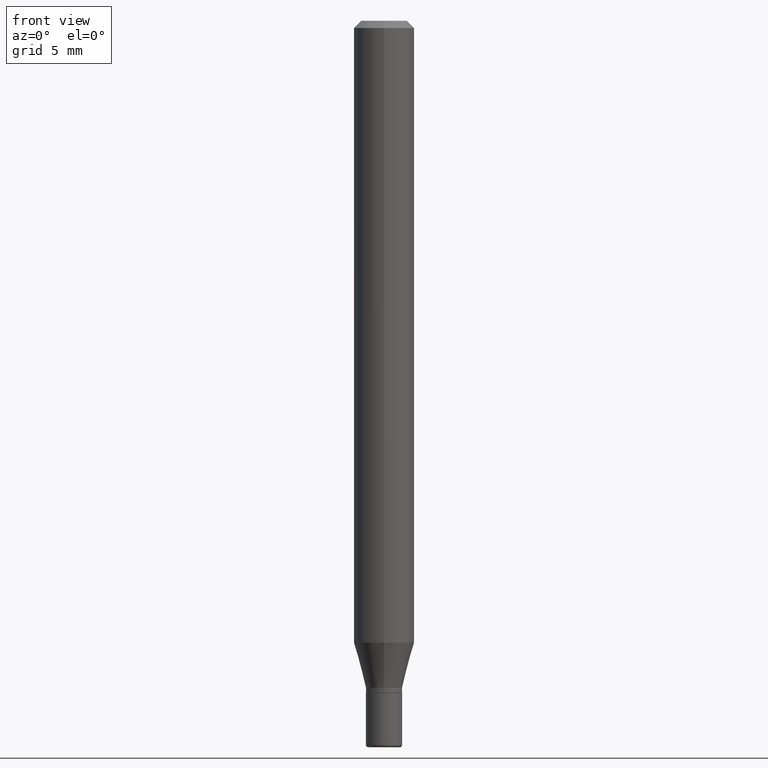
[diagram: clean part render]
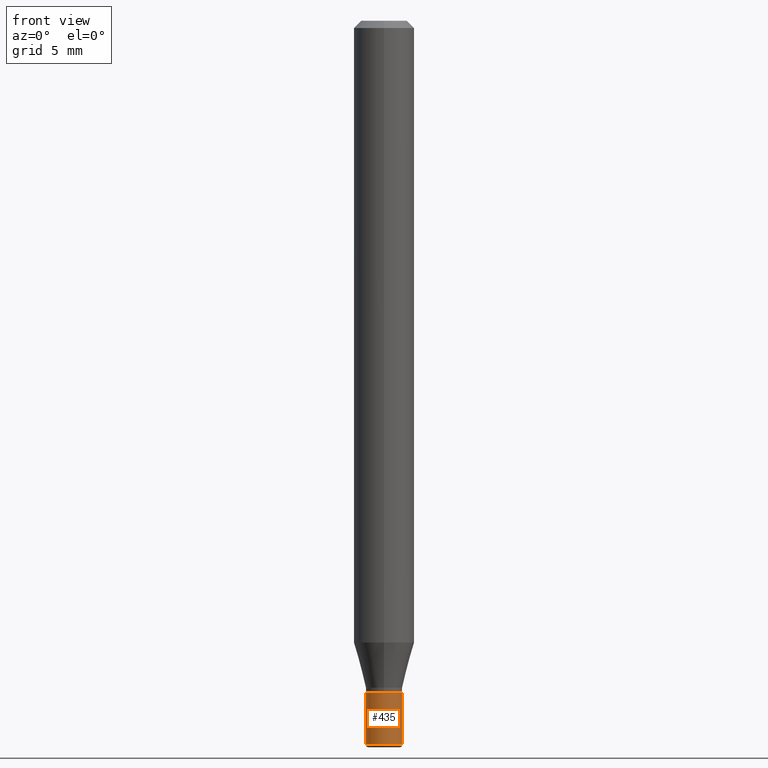
[diagram: same view with one face highlighted and labeled with its STEP entity id]
A machine part, front view. The second image highlights one B-rep face of the part: STEP entity #435.
In plain terms, the highlighted cylindrical surface (edge-blend (fillet) strip) has radius 0.9525 mm, axis along (-0, 0, 1).
Its self-contained STEP definition (entity closure, byte-faithful):
#2 = CARTESIAN_POINT ( 'NONE',  ( 0.000000000000000000, 0.000000000000000000, 0.000000000000000000 ) ) ;
#13 = VECTOR ( 'NONE', #271, 39.37007874015748143 ) ;
#24 = AXIS2_PLACEMENT_3D ( 'NONE', #214, #508, #382 ) ;
#32 = LINE ( 'NONE', #338, #413 ) ;
#83 = VERTEX_POINT ( 'NONE', #290 ) ;
#112 = CYLINDRICAL_SURFACE ( 'NONE', #145, 0.03750000000000008882 ) ;
#129 = CIRCLE ( 'NONE', #426, 0.03750000000000017902 ) ;
#134 = DIRECTION ( 'NONE',  ( -2.445468806185136877E-29, 3.491481338843145188E-15, 1.000000000000000000 ) ) ;
#145 = AXIS2_PLACEMENT_3D ( 'NONE', #2, #275, #436 ) ;
#150 = CARTESIAN_POINT ( 'NONE',  ( 0.03750000000000008882, -2.618611004132355933E-16, 1.828566290923480126E-30 ) ) ;
#161 = ORIENTED_EDGE ( 'NONE', *, *, #403, .T. ) ;
#173 = CARTESIAN_POINT ( 'NONE',  ( 0.03749999999999999861, -5.106291458058100676E-15, -1.387500000000000178 ) ) ;
#186 = ORIENTED_EDGE ( 'NONE', *, *, #292, .F. ) ;
#195 = ORIENTED_EDGE ( 'NONE', *, *, #266, .F. ) ;
#213 = EDGE_CURVE ( 'NONE', #512, #83, #129, .T. ) ;
#214 = CARTESIAN_POINT ( 'NONE',  ( 3.393087968581877252E-29, -4.844430357644865674E-15, -1.387500000000000178 ) ) ;
#231 = ORIENTED_EDGE ( 'NONE', *, *, #213, .T. ) ;
#240 = EDGE_LOOP ( 'NONE', ( #195, #231, #161, #186 ) ) ;
#259 = DIRECTION ( 'NONE',  ( -2.445468806185136597E-29, 3.491481338843145583E-15, 1.000000000000000000 ) ) ;
#266 = EDGE_CURVE ( 'NONE', #512, #414, #32, .T. ) ;
#271 = DIRECTION ( 'NONE',  ( -2.445468806185136877E-29, 3.491481338843145188E-15, 1.000000000000000000 ) ) ;
#275 = DIRECTION ( 'NONE',  ( -2.445468806185136597E-29, 3.491481338843145583E-15, 1.000000000000000000 ) ) ;
#290 = CARTESIAN_POINT ( 'NONE',  ( 0.03750000000000017902, -5.481625701983738143E-15, -1.494999999999999662 ) ) ;
#292 = EDGE_CURVE ( 'NONE', #414, #298, #427, .T. ) ;
#298 = VERTEX_POINT ( 'NONE', #173 ) ;
#318 = FACE_OUTER_BOUND ( 'NONE', #240, .T. ) ;
#338 = CARTESIAN_POINT ( 'NONE',  ( -0.03750000000000008882, 2.664535259100382008E-16, -1.844600658845594012E-30 ) ) ;
#367 = CARTESIAN_POINT ( 'NONE',  ( -0.03750000000000017902, -4.765643953697645024E-15, -1.494999999999999662 ) ) ;
#382 = DIRECTION ( 'NONE',  ( 1.000000000000000000, -6.982962677686268288E-15, 0.000000000000000000 ) ) ;
#403 = EDGE_CURVE ( 'NONE', #83, #298, #518, .T. ) ;
#413 = VECTOR ( 'NONE', #134, 39.37007874015748143 ) ;
#414 = VERTEX_POINT ( 'NONE', #475 ) ;
#424 = CARTESIAN_POINT ( 'NONE',  ( 3.655975865246778562E-29, -5.219764601570502352E-15, -1.494999999999999662 ) ) ;
#426 = AXIS2_PLACEMENT_3D ( 'NONE', #424, #259, #428 ) ;
#427 = CIRCLE ( 'NONE', #24, 0.03749999999999999861 ) ;
#428 = DIRECTION ( 'NONE',  ( 1.000000000000000000, -6.982962677686261189E-15, 0.000000000000000000 ) ) ;
#435 = ADVANCED_FACE ( 'NONE', ( #318 ), #112, .T. ) ;
#436 = DIRECTION ( 'NONE',  ( 1.000000000000000000, -6.982962677686265922E-15, 4.876176775795935232E-29 ) ) ;
#475 = CARTESIAN_POINT ( 'NONE',  ( -0.03749999999999999861, -4.765643953697646601E-15, -1.387500000000000178 ) ) ;
#508 = DIRECTION ( 'NONE',  ( -2.445468806185136597E-29, 3.491481338843145583E-15, 1.000000000000000000 ) ) ;
#512 = VERTEX_POINT ( 'NONE', #367 ) ;
#518 = LINE ( 'NONE', #150, #13 ) ;